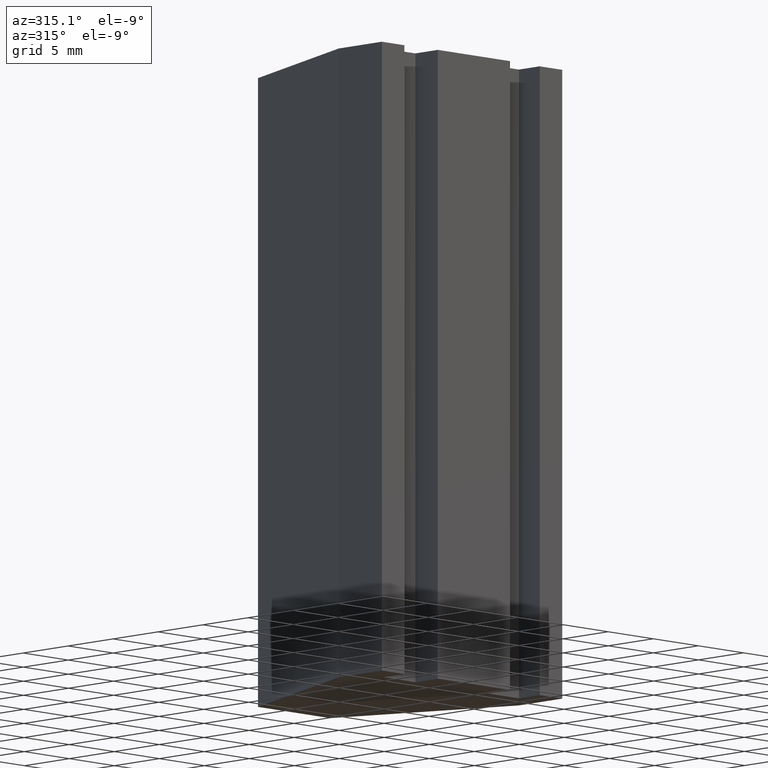
[diagram: clean part render]
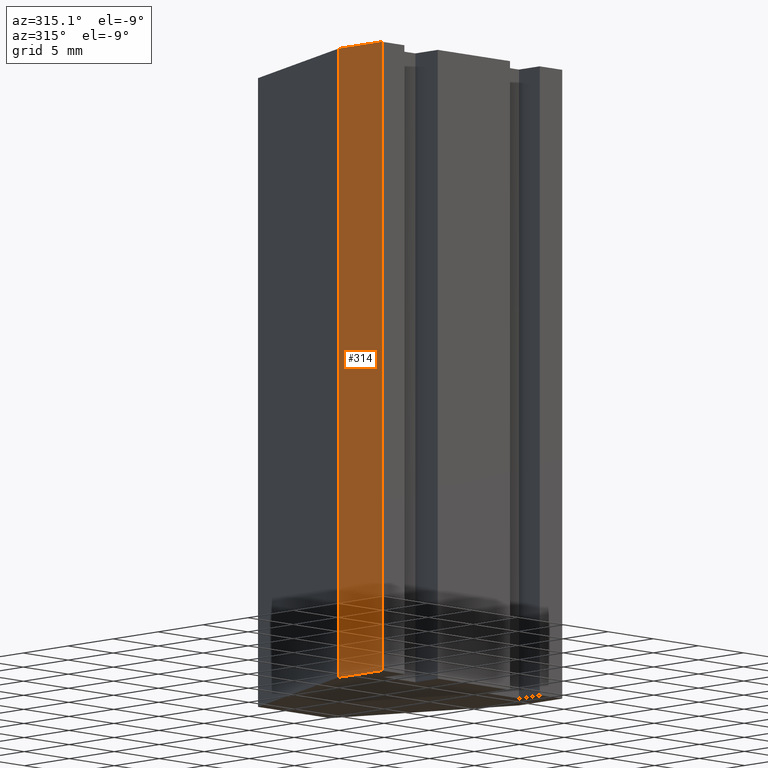
[diagram: same view with one face highlighted and labeled with its STEP entity id]
A machine part, auxiliary view. The second image highlights one B-rep face of the part: STEP entity #314.
In plain terms, the highlighted planar face has unit normal (-1, -0, 0).
Its self-contained STEP definition (entity closure, byte-faithful):
#28=FACE_OUTER_BOUND('',#44,.T.);
#44=EDGE_LOOP('',(#253,#254,#255,#256));
#48=LINE('',#435,#90);
#86=LINE('',#510,#128);
#87=LINE('',#512,#129);
#88=LINE('',#513,#130);
#90=VECTOR('',#358,10.);
#128=VECTOR('',#420,10.);
#129=VECTOR('',#423,10.);
#130=VECTOR('',#424,10.);
#131=VERTEX_POINT('',#431);
#133=VERTEX_POINT('',#434);
#157=VERTEX_POINT('',#506);
#158=VERTEX_POINT('',#508);
#160=EDGE_CURVE('',#131,#133,#48,.T.);
#198=EDGE_CURVE('',#157,#158,#86,.T.);
#199=EDGE_CURVE('',#157,#131,#87,.T.);
#200=EDGE_CURVE('',#133,#158,#88,.T.);
#253=ORIENTED_EDGE('',*,*,#199,.F.);
#254=ORIENTED_EDGE('',*,*,#198,.T.);
#255=ORIENTED_EDGE('',*,*,#200,.F.);
#256=ORIENTED_EDGE('',*,*,#160,.F.);
#298=PLANE('',#350);
#314=ADVANCED_FACE('',(#28),#298,.T.);
#350=AXIS2_PLACEMENT_3D('',#511,#421,#422);
#358=DIRECTION('',(0.,0.,-1.));
#420=DIRECTION('',(0.,0.,-1.));
#421=DIRECTION('center_axis',(-1.,-2.31296463463574E-16,0.));
#422=DIRECTION('ref_axis',(-2.31296463463574E-16,1.,0.));
#423=DIRECTION('',(2.31296463463574E-16,-1.,0.));
#424=DIRECTION('',(-2.31296463463574E-16,1.,0.));
#431=CARTESIAN_POINT('',(-9.99999999999998,0.2,0.));
#434=CARTESIAN_POINT('',(-9.99999999999998,0.2,-50.));
#435=CARTESIAN_POINT('',(-9.99999999999998,0.2,0.));
#506=CARTESIAN_POINT('',(-9.99999999999998,5.,0.));
#508=CARTESIAN_POINT('',(-9.99999999999998,5.,-50.));
#510=CARTESIAN_POINT('',(-9.99999999999998,5.,0.));
#511=CARTESIAN_POINT('Origin',(-9.99999999999998,0.2,0.));
#512=CARTESIAN_POINT('',(-9.99999999999998,5.,0.));
#513=CARTESIAN_POINT('',(-9.99999999999998,5.,-50.));